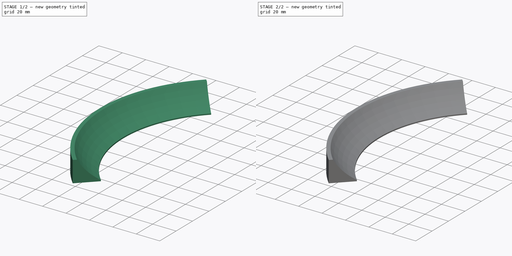
[diagram: build sequence overview — one tinted view per stage of 2, left to right]
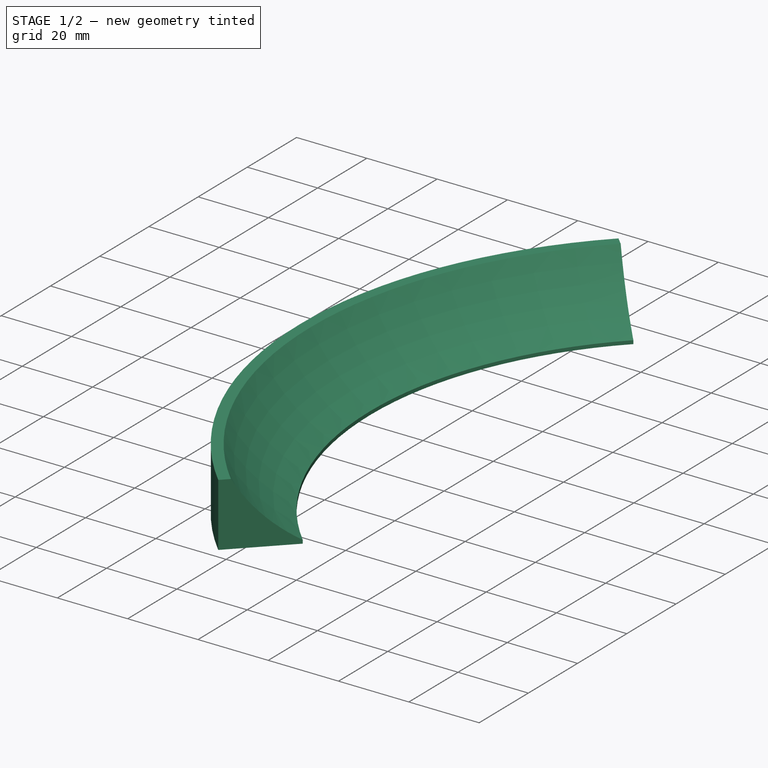
[diagram: stage 1 of 2 — iso view after this stage's code; geometry added in this stage tinted green]
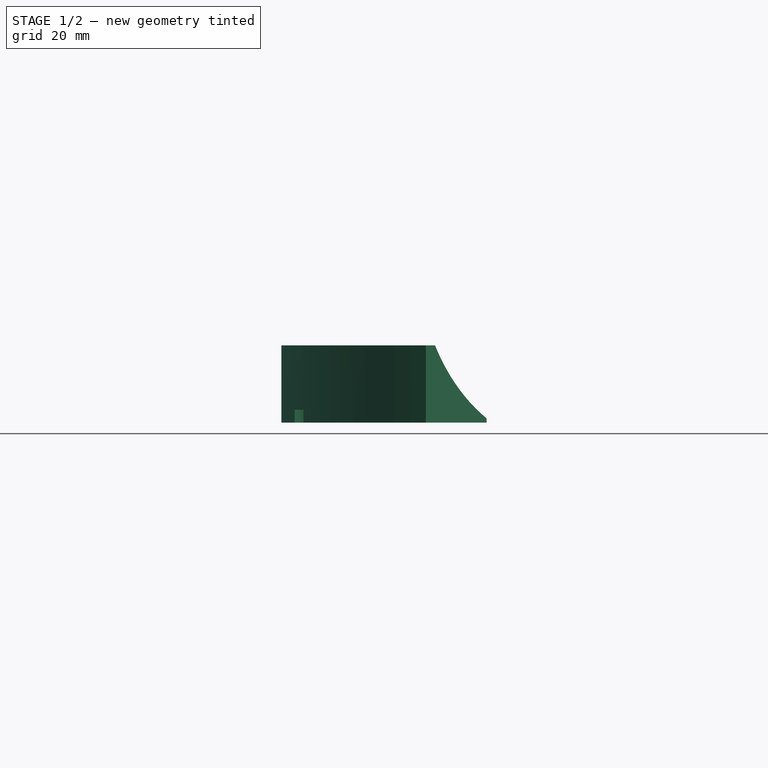
[diagram: stage 1 of 2 — front view after this stage's code; geometry added in this stage tinted green]
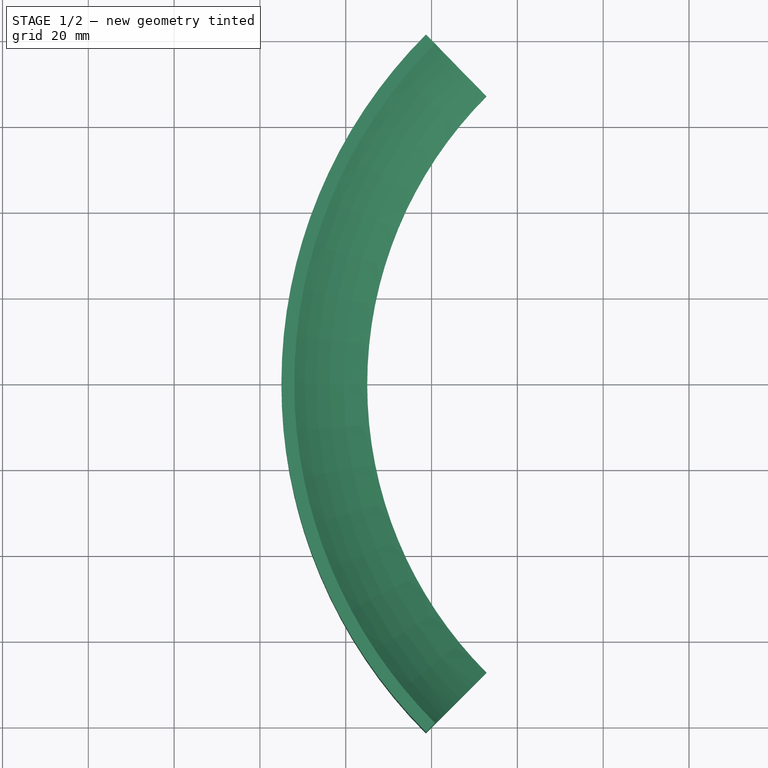
[diagram: stage 1 of 2 — top view after this stage's code; geometry added in this stage tinted green]
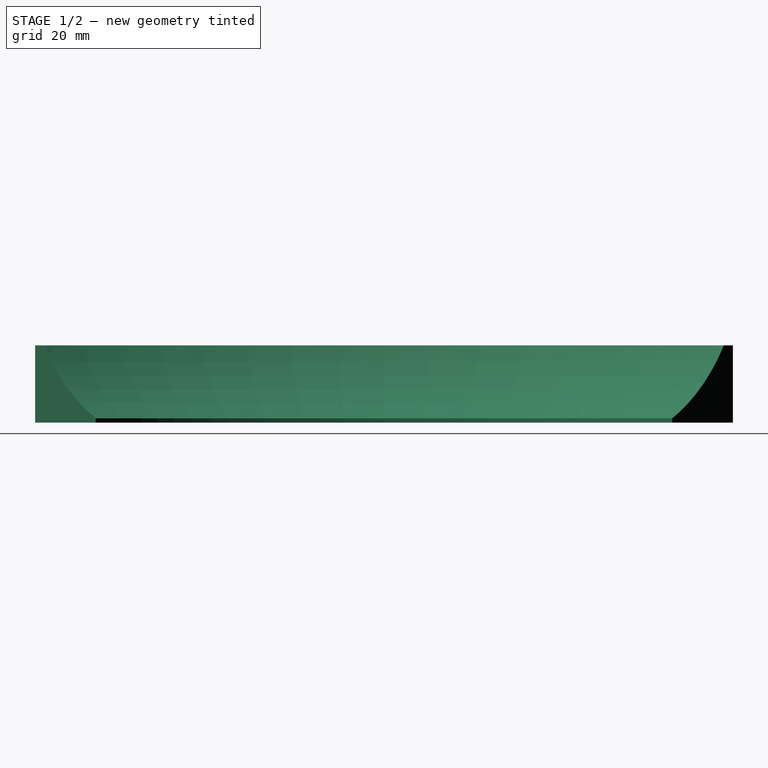
[diagram: stage 1 of 2 — right view after this stage's code; geometry added in this stage tinted green]
FCSTD DOCUMENT  (FreeCAD 0.17R13541 (Git))
Label: protector
License: All rights reserved
LicenseURL: http://en.wikipedia.org/wiki/All_rights_reserved
objects: Sketcher::SketchObject×3, PartDesign::Pocket×2, PartDesign::Revolution×1, PartDesign::Body×1
note: 10 computed .brp shape members not serialized (recipe doc carries the construction recipe); baked Part::Feature solids carry a one-line shape summary decoded from their .brp

FEATURE [Sketcher::SketchObject] Sketch
  MapMode = 5
  Placement = pos=(0,0,0) rot=(1,0,0;1.5708rad)
  Support = -> [XZ_Plane]
  sketch-geometry (6):
    g0: LineSegment StartX=-95 StartY=0 StartZ=0 EndX=-115 EndY=0 EndZ=0
    g1: LineSegment StartX=-115 StartY=0 StartZ=0 EndX=-115 EndY=18 EndZ=0
    g2: LineSegment StartX=-115 StartY=18 StartZ=0 EndX=-112 EndY=18 EndZ=0
    g3: ArcOfCircle CenterX=-71.7775 CenterY=41.2225 CenterZ=0 NormalX=0 NormalY=0 NormalZ=1 AngleXU=0 Radius=46.445 StartAngle=3.66519 EndAngle=4.18879
    g4: LineSegment [constr] StartX=-112 StartY=18 StartZ=0 EndX=-117 EndY=26.6603 EndZ=0
    g5: LineSegment StartX=-95 StartY=0 StartZ=0 EndX=-95 EndY=1 EndZ=0
  constraints (19):
    c: PointOnObject(g0,g-1)
    c: Horizontal(g0)
    c: DistanceX(g0,g0) = 20
    c: Coincident(g0,g1)
    c: Vertical(g1)
    c: DistanceY(g1,g1) = 18
    c: Coincident(g2,g1)
    c: Horizontal(g2)
    c: DistanceX(g2,g2) = 3
    c: Coincident(g3,g2)
    c: Coincident(g4,g2)
    c: Tangent(g4,g3)
    c: Distance(g4) = 10
    c: Coincident(g5,g0)
    c: Coincident(g5,g3)
    c: Vertical(g5)
    c: DistanceY(g5,g5) = 1
    c: Angle(g4,g2) = 1.0472
    c: DistanceX(g0,g-1) = 115
FEATURE [PartDesign::Revolution] Revolution
  Angle = 90
  Axis = (0,0,1)
  Base = (0,0,0)
  Midplane = true
  Placement = pos=(0,0,0) rot=(1,0,0;1.5708rad)
  Profile = -> Sketch
  ReferenceAxis = -> Sketch [V_Axis]
  Refine = true
FEATURE [Sketcher::SketchObject] Sketch001
  MapMode = 5
  Placement = pos=(0,0,0) rot=(1,0,0;3.14159rad)
  Support = -> [Revolution]
  sketch-geometry (12):
    g0: LineSegment [constr] StartX=-110 StartY=30 StartZ=0 EndX=-100 EndY=30 EndZ=0
    g1: LineSegment [constr] StartX=-100 StartY=30 StartZ=0 EndX=-100 EndY=-30 EndZ=0
    g2: LineSegment [constr] StartX=-100 StartY=-30 StartZ=0 EndX=-110 EndY=-30 EndZ=0
    g3: LineSegment [constr] StartX=-110 StartY=-30 StartZ=0 EndX=-110 EndY=30 EndZ=0
    g4: ArcOfCircle CenterX=-110 CenterY=30 CenterZ=0 NormalX=0 NormalY=0 NormalZ=1 AngleXU=0 Radius=4 StartAngle=1.5708 EndAngle=4.71239
    g5: ArcOfCircle CenterX=-100 CenterY=30 CenterZ=0 NormalX=0 NormalY=0 NormalZ=1 AngleXU=0 Radius=4 StartAngle=4.71239 EndAngle=7.85398
    g6: LineSegment StartX=-110 StartY=26 StartZ=0 EndX=-100 EndY=26 EndZ=0
    g7: LineSegment StartX=-110 StartY=34 StartZ=0 EndX=-100 EndY=34 EndZ=0
    g8: ArcOfCircle CenterX=-110 CenterY=-30 CenterZ=0 NormalX=0 NormalY=0 NormalZ=1 AngleXU=0 Radius=4 StartAngle=1.5708 EndAngle=4.71239
    g9: ArcOfCircle CenterX=-100 CenterY=-30 CenterZ=0 NormalX=0 NormalY=0 NormalZ=1 AngleXU=0 Radius=4 StartAngle=4.71239 EndAngle=7.85398
    g10: LineSegment StartX=-110 StartY=-34 StartZ=0 EndX=-100 EndY=-34 EndZ=0
    g11: LineSegment StartX=-110 StartY=-26 StartZ=0 EndX=-100 EndY=-26 EndZ=0
  constraints (30):
    c: Coincident(g0,g1)
    c: Coincident(g1,g2)
    c: Coincident(g2,g3)
    c: Coincident(g3,g0)
    c: Horizontal(g0)
    c: Horizontal(g2)
    c: Vertical(g1)
    c: Vertical(g3)
    c: DistanceY(g1,g1) = 60
    c: DistanceX(g0,g0) = 10
    c: Tangent(g4,g7) = 1.5708
    c: Tangent(g4,g6) = -1.5708
    c: Tangent(g6,g5) = -1.5708
    c: Tangent(g7,g5) = 1.5708
    c: Horizontal(g6)
    c: Equal(g4,g5)
    c: Coincident(g4,g0)
    c: Tangent(g8,g11) = 1.5708
    c: Tangent(g8,g10) = -1.5708
    c: Tangent(g10,g9) = -1.5708
    c: Tangent(g11,g9) = 1.5708
    c: Horizontal(g10)
    c: Equal(g8,g9)
    c: Coincident(g8,g2)
    c: Coincident(g5,g0)
    c: Coincident(g9,g1)
    c: Radius(g5) = 4
    c: Equal(g5,g9)
    c: Symmetric(g0,g1,g-1)
    c: DistanceX(g9,g-1) = 100
FEATURE [PartDesign::Pocket] Pocket
  BaseFeature = -> Revolution
  Length = 3
  Length2 = 100
  Placement = pos=(0,0,0) rot=(1,0,0;1.5708rad)
  Profile = -> Sketch001
  Refine = true
  Type = 0
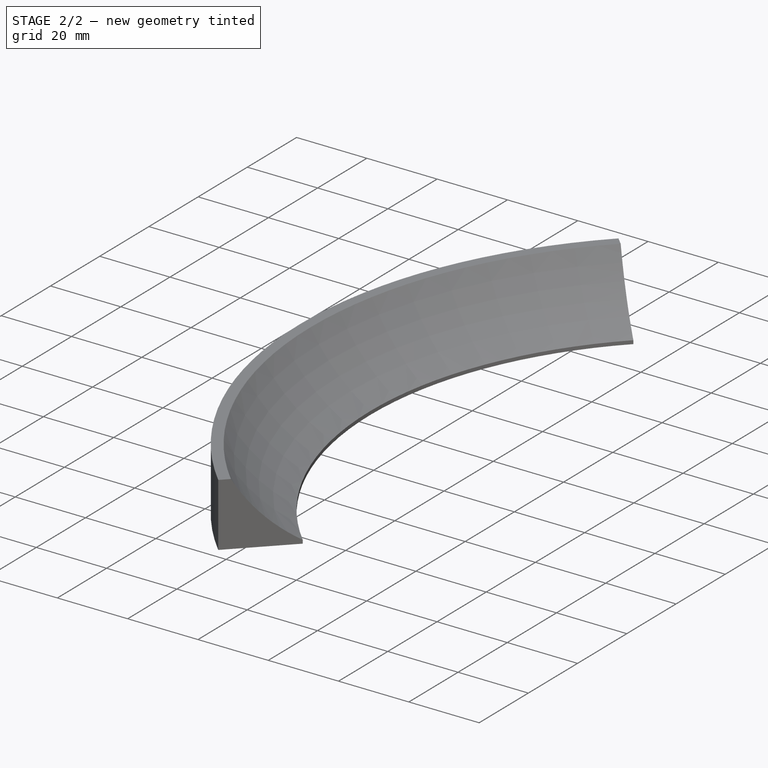
[diagram: stage 2 of 2 — iso view after this stage's code; geometry added in this stage tinted green]
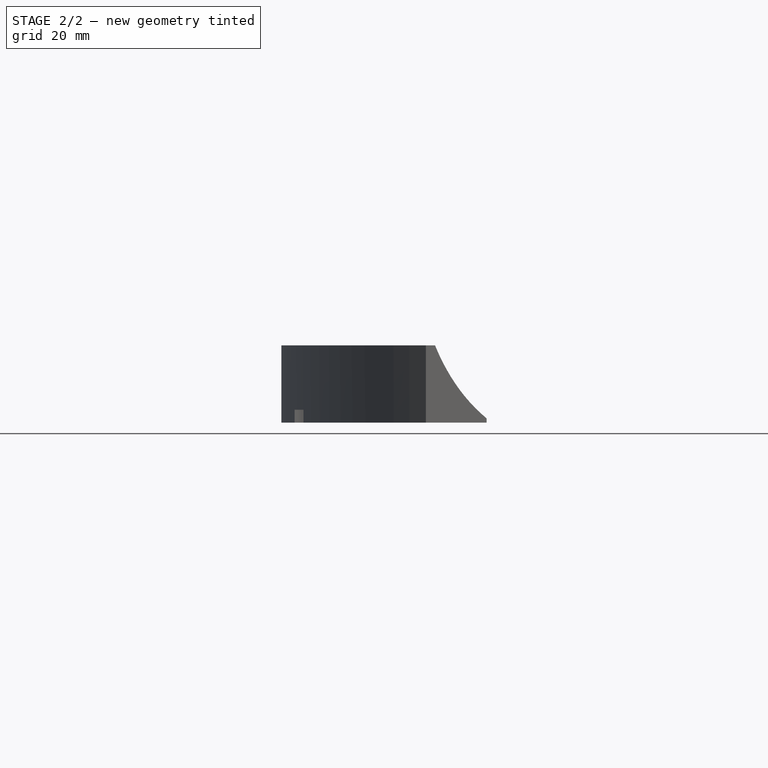
[diagram: stage 2 of 2 — front view after this stage's code; geometry added in this stage tinted green]
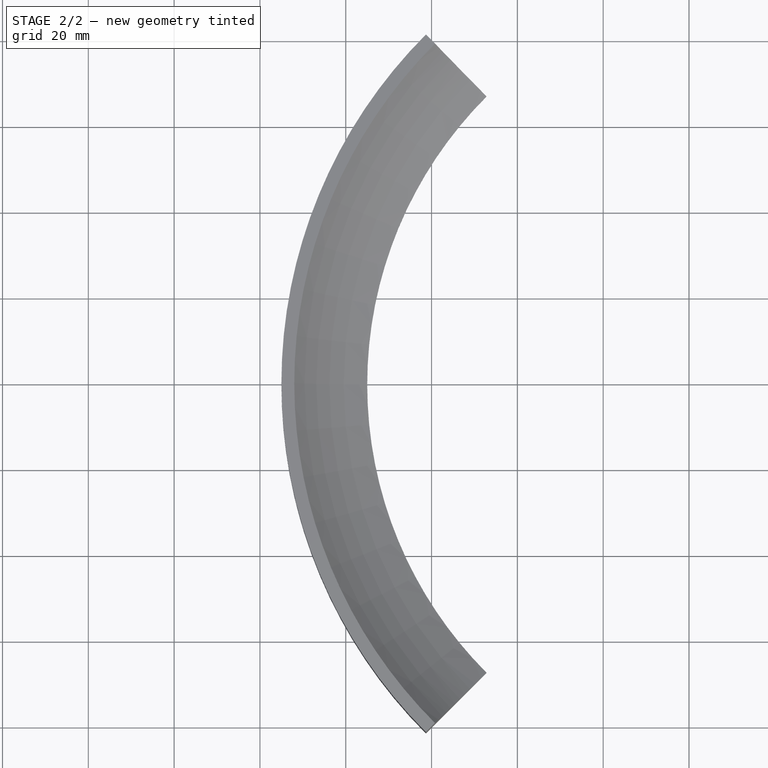
[diagram: stage 2 of 2 — top view after this stage's code; geometry added in this stage tinted green]
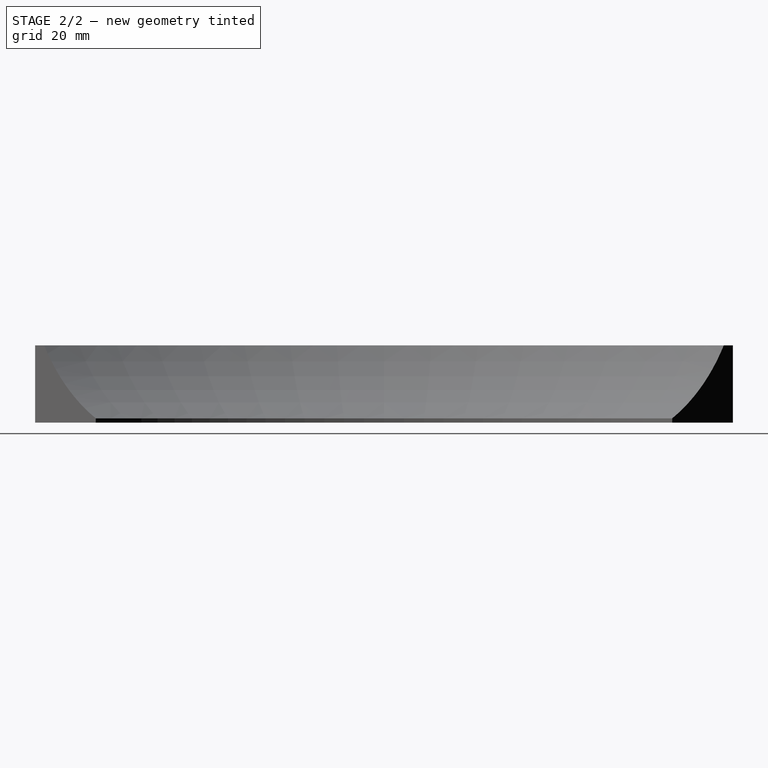
[diagram: stage 2 of 2 — right view after this stage's code; geometry added in this stage tinted green]
FEATURE [Sketcher::SketchObject] Sketch002
  MapMode = 5
  Placement = pos=(0,0,0) rot=(1,0,0;3.14159rad)
  Support = -> [Pocket]
  sketch-geometry (5):
    g0: Circle CenterX=-80 CenterY=70 CenterZ=0 NormalX=0 NormalY=0 NormalZ=1 AngleXU=0 Radius=1.4
    g1: Circle CenterX=-80 CenterY=-70 CenterZ=0 NormalX=0 NormalY=0 NormalZ=1 AngleXU=0 Radius=1.4
    g2: Circle CenterX=-110 CenterY=0 CenterZ=0 NormalX=0 NormalY=0 NormalZ=1 AngleXU=0 Radius=1.4
    g3: Circle CenterX=-100 CenterY=-40 CenterZ=0 NormalX=0 NormalY=0 NormalZ=1 AngleXU=0 Radius=1.4
    g4: Circle CenterX=-100 CenterY=40 CenterZ=0 NormalX=0 NormalY=0 NormalZ=1 AngleXU=0 Radius=1.4
  constraints (13):
    c: PointOnObject(g2,g-1)
    c: DistanceX(g1,g-1) = 80
    c: DistanceY(g1,g-1) = 70
    c: DistanceX(g2,g-1) = 110
    c: Symmetric(g0,g1,g-1)
    c: Radius(g0) = 1.4
    c: Equal(g0,g2)
    c: Equal(g0,g1)
    c: Symmetric(g4,g3,g-1)
    c: Equal(g4,g3)
    c: Equal(g3,g1)
    c: DistanceX(g3,g-1) = 100
    c: DistanceY(g3,g-1) = 40
FEATURE [PartDesign::Pocket] Pocket001
  BaseFeature = -> Pocket
  Length = 8
  Length2 = 100
  Placement = pos=(0,0,0) rot=(1,0,0;1.5708rad)
  Profile = -> Sketch002
  Refine = true
  Type = 0
FEATURE [PartDesign::Body] Body
  Group = -> [Sketch,Revolution,Sketch001,Pocket,Sketch002,Pocket001]
  Origin = -> Origin
  Tip = -> Pocket001
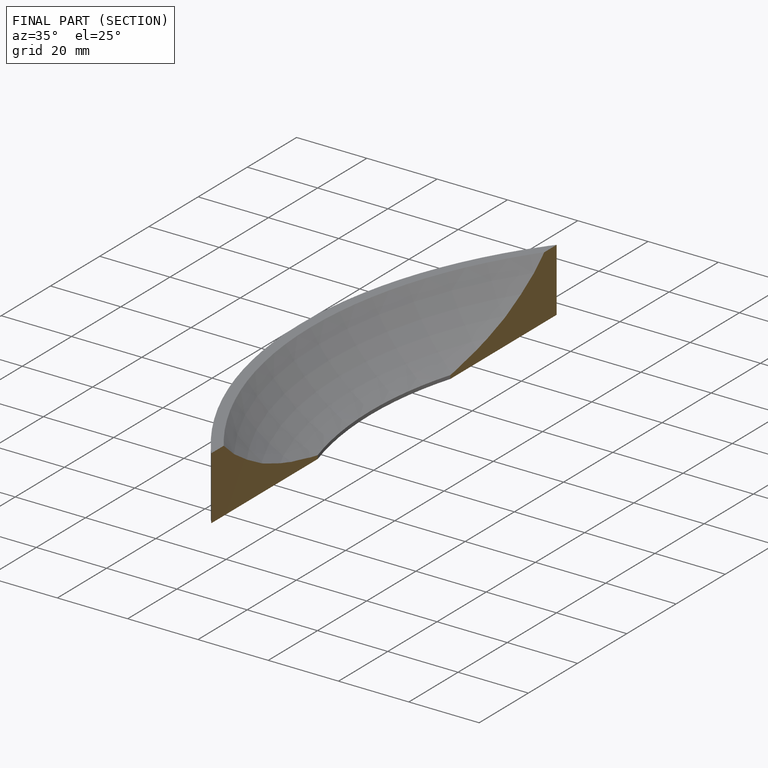
[diagram: finished part — half-section view (interior)]
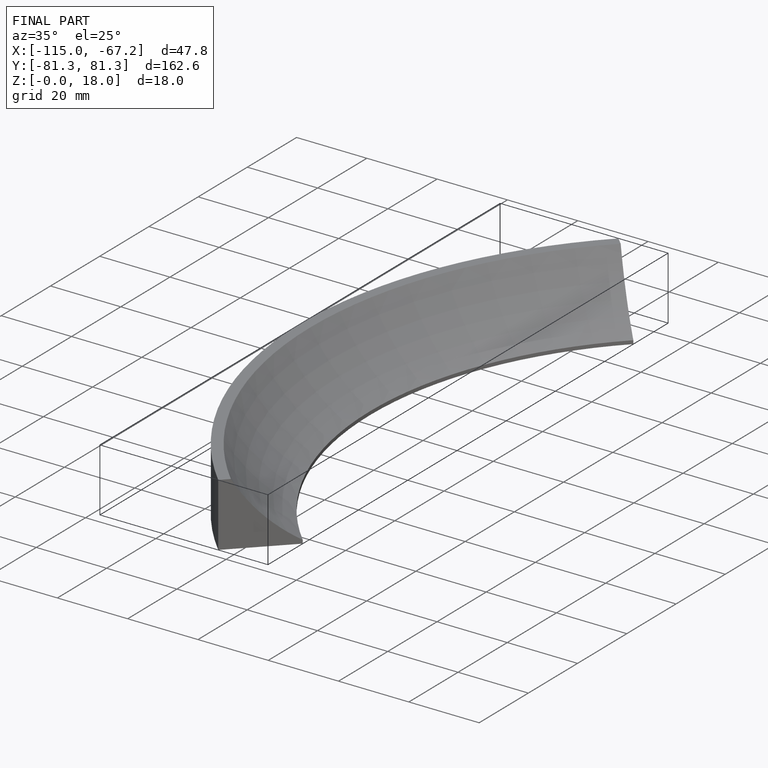
[diagram: finished part — iso view with bounding-box wireframe]
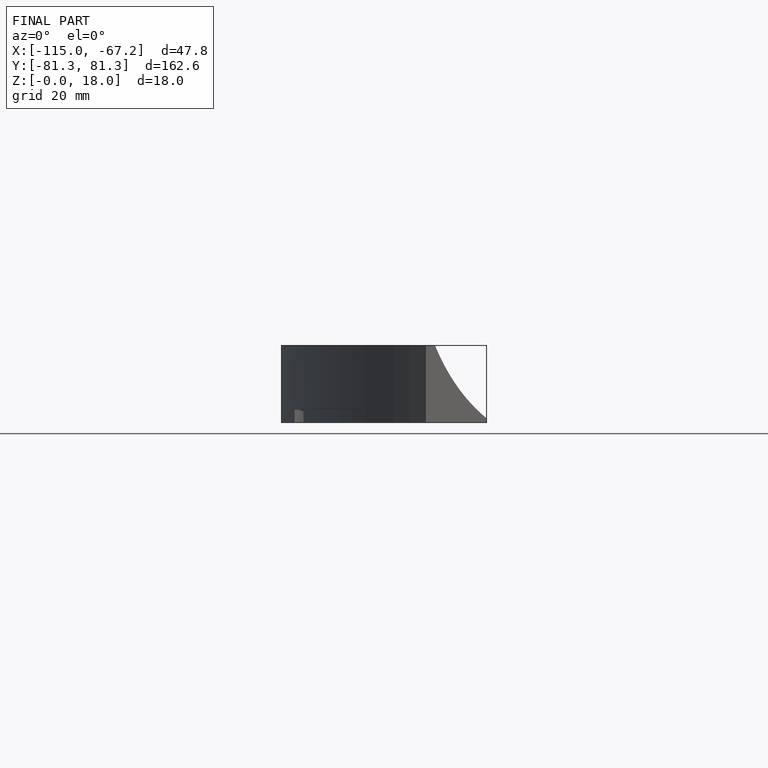
[diagram: finished part — front view with bounding-box wireframe]
